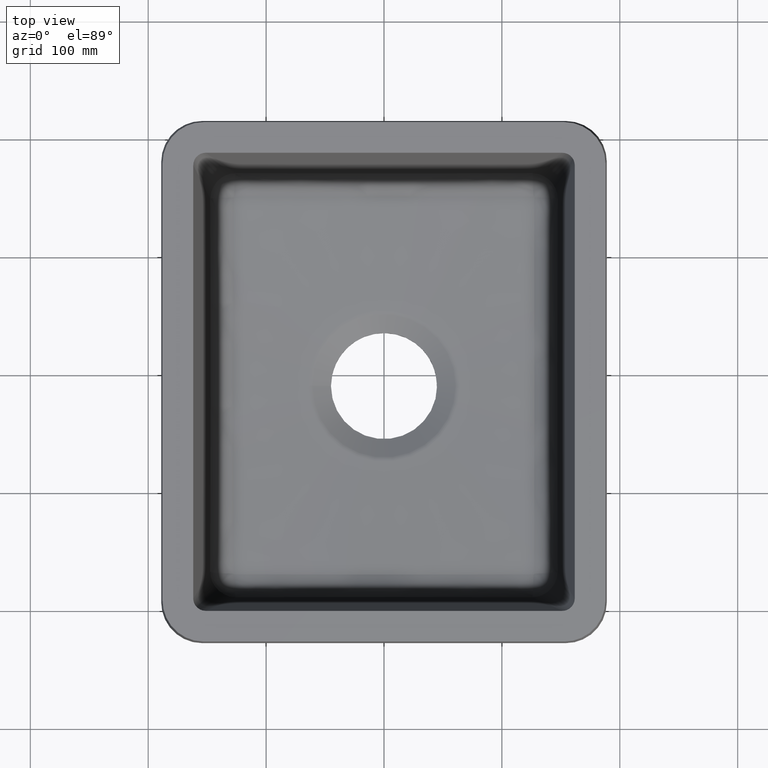
[diagram: clean part render]
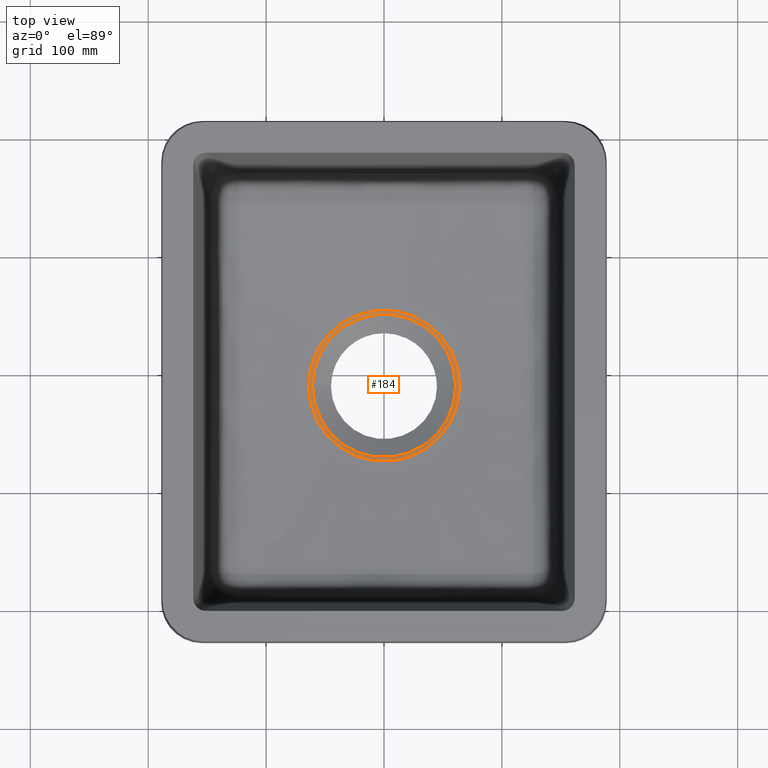
[diagram: same view with one face highlighted and labeled with its STEP entity id]
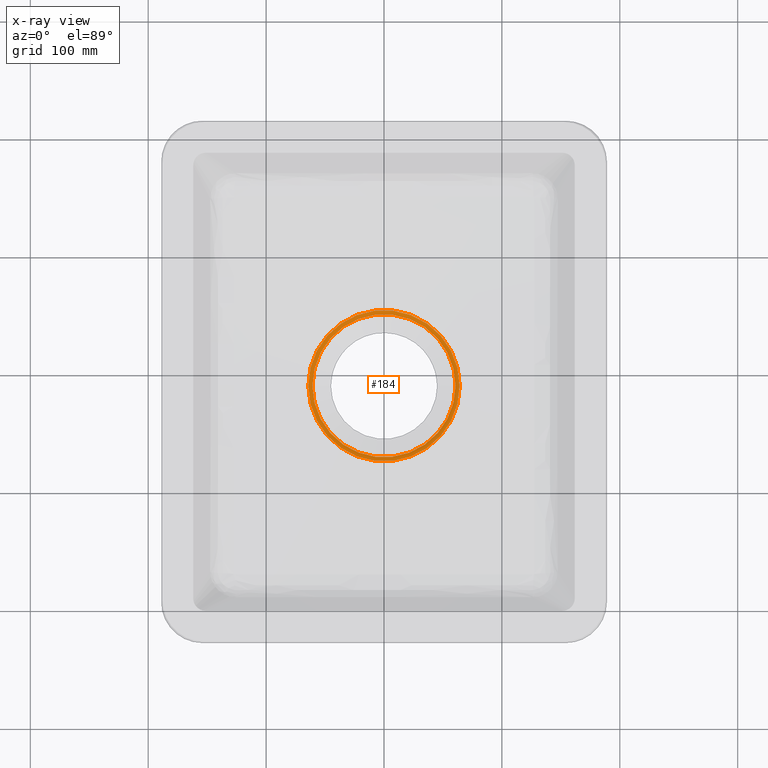
[diagram: x-ray of the same camera — body ghosted, the highlighted face saturated]
A machine part, top view. The second image highlights one B-rep face of the part: STEP entity #184.
The next image is the same camera in x-ray: the body ghosted, the highlighted face saturated — about 0% of this face is hidden behind the body in this view.
In plain terms, the highlighted toroidal blend (fillet) surface has major radius 64.721 mm and minor (blend) radius 8 mm.
Its self-contained STEP definition (entity closure, byte-faithful):
#113=TOROIDAL_SURFACE('',#1354,64.7210063281648,8.);
#164=FACE_BOUND('',#396,.T.);
#165=FACE_BOUND('',#397,.T.);
#184=ADVANCED_FACE('',(#164,#165),#113,.T.);
#396=EDGE_LOOP('',(#565));
#397=EDGE_LOOP('',(#566));
#480=CIRCLE('',#1351,60.7210063281648);
#481=CIRCLE('',#1353,64.1629545382118);
#565=ORIENTED_EDGE('',*,*,#1070,.F.);
#566=ORIENTED_EDGE('',*,*,#1069,.T.);
#938=VERTEX_POINT('',#2095);
#939=VERTEX_POINT('',#2098);
#1069=EDGE_CURVE('',#938,#938,#480,.T.);
#1070=EDGE_CURVE('',#939,#939,#481,.T.);
#1351=AXIS2_PLACEMENT_3D('',#2094,#1434,#1435);
#1353=AXIS2_PLACEMENT_3D('',#2097,#1438,#1439);
#1354=AXIS2_PLACEMENT_3D('',#2099,#1440,#1441);
#1434=DIRECTION('',(0.,0.,-1.));
#1435=DIRECTION('',(-1.,0.,0.));
#1438=DIRECTION('',(0.,0.,-1.));
#1439=DIRECTION('',(-1.,0.,0.));
#1440=DIRECTION('',(0.,0.,-1.));
#1441=DIRECTION('',(1.,0.,0.));
#2094=CARTESIAN_POINT('',(0.,-209.,-193.923472764502));
#2095=CARTESIAN_POINT('',(-60.7210063281648,-209.,-193.923472764502));
#2097=CARTESIAN_POINT('',(0.,-209.,-192.871163592699));
#2098=CARTESIAN_POINT('',(-64.1629545382118,-209.,-192.871163592699));
#2099=CARTESIAN_POINT('',(0.,-209.,-200.851675994778));